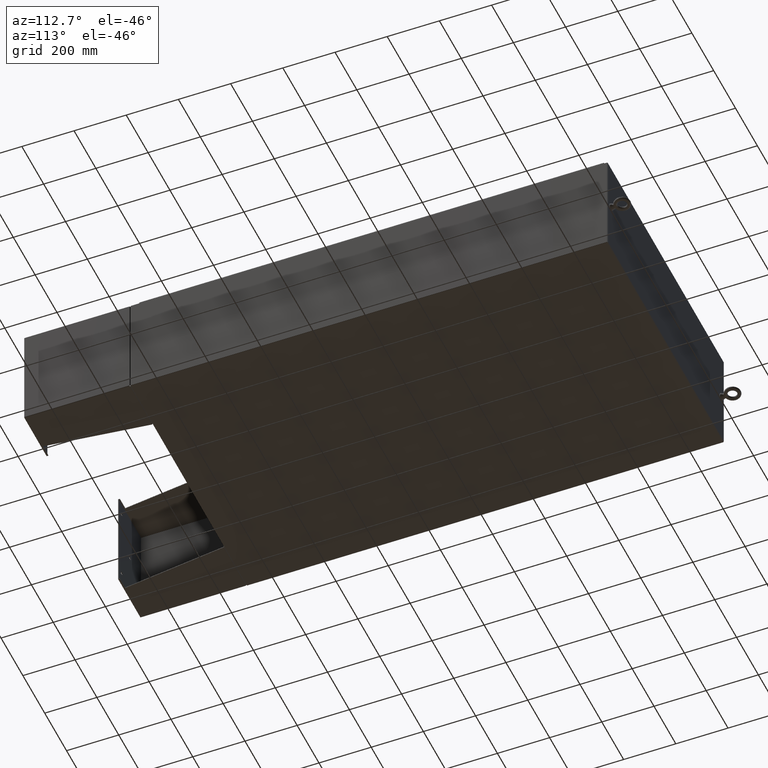
[diagram: clean part render]
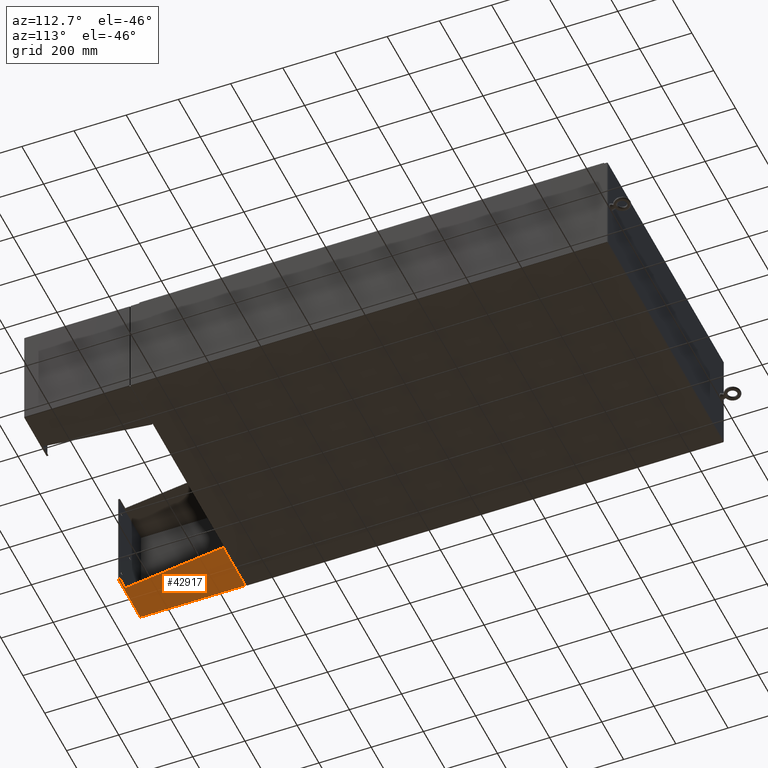
[diagram: same view with one face highlighted and labeled with its STEP entity id]
A machine part, auxiliary view. The second image highlights one B-rep face of the part: STEP entity #42917.
In plain terms, the highlighted planar face has unit normal (-0, -0, 1).
Its self-contained STEP definition (entity closure, byte-faithful):
#386 = EDGE_CURVE ( 'NONE', #43697, #21967, #39609, .T. ) ;
#529 = DIRECTION ( 'NONE',  ( -3.550958521948298200E-015, -0.0000000000000000000, -1.000000000000000000 ) ) ;
#5166 = CARTESIAN_POINT ( 'NONE',  ( 8.000000000000028400, -7.999999999999999100, 8.001000000000015400 ) ) ;
#5183 = LINE ( 'NONE', #6573, #47055 ) ;
#5834 = CARTESIAN_POINT ( 'NONE',  ( 8.000000000000019500, -7.749999999999999100, 6.052216497445943600 ) ) ;
#6573 = CARTESIAN_POINT ( 'NONE',  ( 8.000000000000000000, -7.999999999999999100, 0.03900000000001453000 ) ) ;
#7300 = CARTESIAN_POINT ( 'NONE',  ( 8.000000000000014200, 7.857000000000001100, 8.001000000000015400 ) ) ;
#10733 = DIRECTION ( 'NONE',  ( 3.550958521948298200E-015, 0.0000000000000000000, 1.000000000000000000 ) ) ;
#11361 = DIRECTION ( 'NONE',  ( 4.399772607369799400E-016, 0.9922942345449394800, 0.1239038017531047700 ) ) ;
#12861 = CARTESIAN_POINT ( 'NONE',  ( 8.000000000000014200, 7.857000000000001100, 0.03900000000001453000 ) ) ;
#15497 = EDGE_CURVE ( 'NONE', #32464, #68483, #65135, .T. ) ;
#16608 = CARTESIAN_POINT ( 'NONE',  ( 8.000000000000028400, -7.749999999999999100, 8.001000000000022500 ) ) ;
#19783 = VERTEX_POINT ( 'NONE', #61582 ) ;
#21967 = VERTEX_POINT ( 'NONE', #27540 ) ;
#24139 = CARTESIAN_POINT ( 'NONE',  ( 8.000000000000028400, -7.999999999999999100, 8.001000000000015400 ) ) ;
#27540 = CARTESIAN_POINT ( 'NONE',  ( 8.000000000000021300, -7.749999999999999100, 6.052216497445943600 ) ) ;
#32464 = VERTEX_POINT ( 'NONE', #57572 ) ;
#35901 = VECTOR ( 'NONE', #11361, 39.37007874015748900 ) ;
#36991 = VECTOR ( 'NONE', #69451, 39.37007874015748100 ) ;
#37892 = VECTOR ( 'NONE', #529, 39.37007874015748100 ) ;
#39609 = LINE ( 'NONE', #45873, #37892 ) ;
#40736 = ORIENTED_EDGE ( 'NONE', *, *, #15497, .T. ) ;
#42917 = ADVANCED_FACE ( 'NONE', ( #67905 ), #70920, .F. ) ;
#43406 = DIRECTION ( 'NONE',  ( -1.000000000000000000, 0.0000000000000000000, 3.550958521948298200E-015 ) ) ;
#43697 = VERTEX_POINT ( 'NONE', #16608 ) ;
#43989 = EDGE_CURVE ( 'NONE', #32464, #19783, #5183, .T. ) ;
#44659 = VERTEX_POINT ( 'NONE', #24139 ) ;
#45873 = CARTESIAN_POINT ( 'NONE',  ( 8.000000000000028400, -7.749999999999999100, 8.001000000000015400 ) ) ;
#47055 = VECTOR ( 'NONE', #61287, 39.37007874015748100 ) ;
#50430 = VECTOR ( 'NONE', #63654, 39.37007874015748100 ) ;
#52584 = EDGE_LOOP ( 'NONE', ( #58168, #62117, #70063, #70752, #40736, #57040 ) ) ;
#54444 = CARTESIAN_POINT ( 'NONE',  ( 8.000000000000028400, -7.999999999999999100, 8.001000000000015400 ) ) ;
#55930 = LINE ( 'NONE', #54444, #68956 ) ;
#57040 = ORIENTED_EDGE ( 'NONE', *, *, #67832, .F. ) ;
#57572 = CARTESIAN_POINT ( 'NONE',  ( 8.000000000000014200, 7.857000000000001100, 0.03900000000001453000 ) ) ;
#58168 = ORIENTED_EDGE ( 'NONE', *, *, #386, .F. ) ;
#59971 = DIRECTION ( 'NONE',  ( -3.550958521948298200E-015, 0.0000000000000000000, -1.000000000000000000 ) ) ;
#61287 = DIRECTION ( 'NONE',  ( -0.0000000000000000000, -1.000000000000000000, 0.0000000000000000000 ) ) ;
#61582 = CARTESIAN_POINT ( 'NONE',  ( 8.000000000000001800, -7.999999999999993800, 0.03899999999999890400 ) ) ;
#62038 = AXIS2_PLACEMENT_3D ( 'NONE', #5166, #43406, #10733 ) ;
#62117 = ORIENTED_EDGE ( 'NONE', *, *, #64172, .T. ) ;
#63112 = EDGE_CURVE ( 'NONE', #44659, #19783, #55930, .T. ) ;
#63654 = DIRECTION ( 'NONE',  ( 0.0000000000000000000, 0.0000000000000000000, 1.000000000000000000 ) ) ;
#63816 = CARTESIAN_POINT ( 'NONE',  ( 8.000000000000028400, -7.999999999999999100, 8.001000000000015400 ) ) ;
#64172 = EDGE_CURVE ( 'NONE', #43697, #44659, #64351, .T. ) ;
#64351 = LINE ( 'NONE', #63816, #36991 ) ;
#65135 = LINE ( 'NONE', #12861, #50430 ) ;
#66812 = LINE ( 'NONE', #5834, #35901 ) ;
#67832 = EDGE_CURVE ( 'NONE', #21967, #68483, #66812, .T. ) ;
#67905 = FACE_OUTER_BOUND ( 'NONE', #52584, .T. ) ;
#68483 = VERTEX_POINT ( 'NONE', #7300 ) ;
#68956 = VECTOR ( 'NONE', #59971, 39.37007874015748100 ) ;
#69451 = DIRECTION ( 'NONE',  ( 0.0000000000000000000, -1.000000000000000000, 0.0000000000000000000 ) ) ;
#70063 = ORIENTED_EDGE ( 'NONE', *, *, #63112, .T. ) ;
#70752 = ORIENTED_EDGE ( 'NONE', *, *, #43989, .F. ) ;
#70920 = PLANE ( 'NONE',  #62038 ) ;